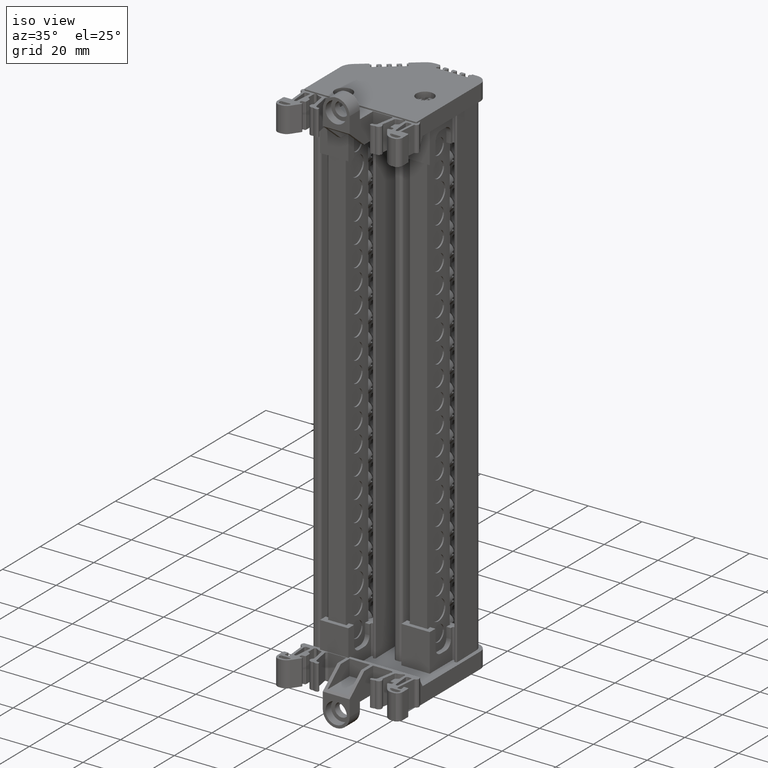
[diagram: clean part render]
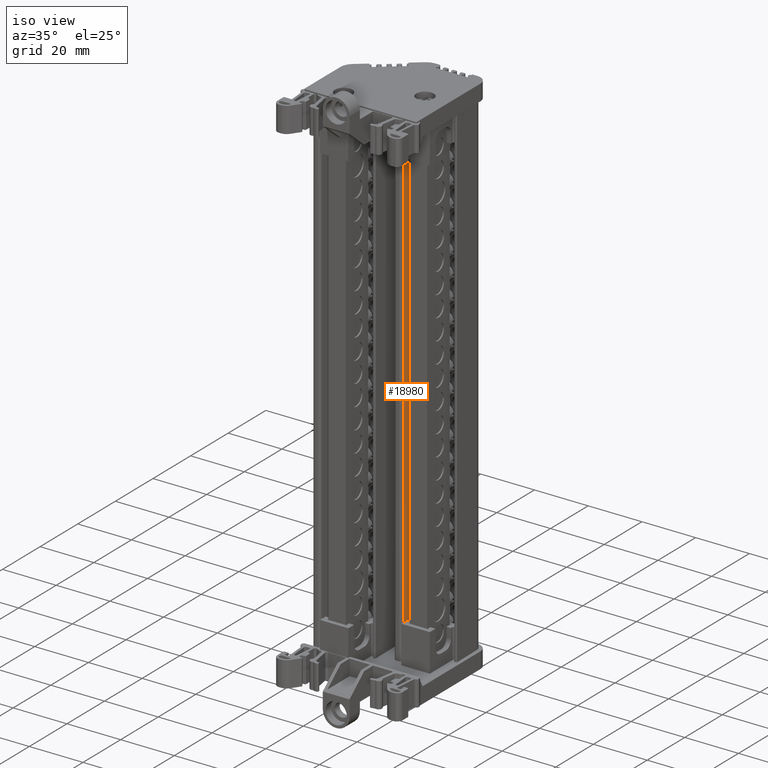
[diagram: same view with one face highlighted and labeled with its STEP entity id]
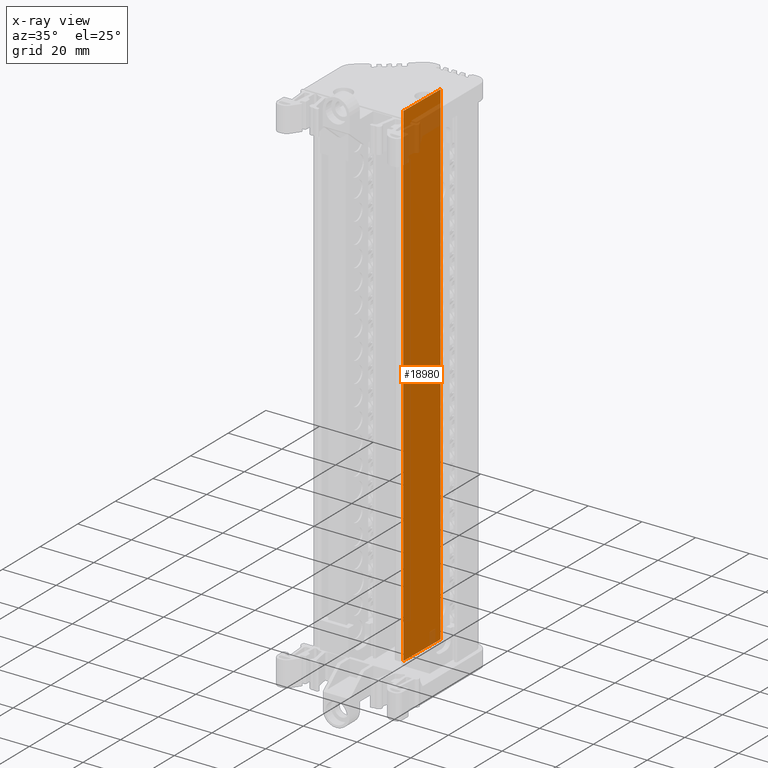
[diagram: x-ray of the same camera — body ghosted, the highlighted face saturated]
A machine part, iso view. The second image highlights one B-rep face of the part: STEP entity #18980.
The next image is the same camera in x-ray: the body ghosted, the highlighted face saturated — about 6% of this face is hidden behind the body in this view.
In plain terms, the highlighted planar face has unit normal (0.9998, -0.0175, -0).
Its self-contained STEP definition (entity closure, byte-faithful):
#9005 = AXIS2_PLACEMENT_3D ( 'NONE', #84161, #84156, #84141 ) ;
#11559 = VERTEX_POINT ( 'NONE', #64819 ) ;
#11605 = VERTEX_POINT ( 'NONE', #64793 ) ;
#12371 = VERTEX_POINT ( 'NONE', #62976 ) ;
#12435 = VERTEX_POINT ( 'NONE', #63067 ) ;
#15808 = EDGE_CURVE ( 'NONE', #11559, #11605, #66480, .T. ) ;
#15892 = EDGE_CURVE ( 'NONE', #12435, #11559, #69285, .T. ) ;
#15927 = EDGE_CURVE ( 'NONE', #11605, #12371, #69534, .T. ) ;
#18980 = ADVANCED_FACE ( 'NONE', ( #84116 ), #84123, .T. ) ;
#24762 = EDGE_CURVE ( 'NONE', #12371, #12435, #90557, .T. ) ;
#39083 = EDGE_LOOP ( 'NONE', ( #68216, #68342, #68235, #68239 ) ) ;
#62976 = CARTESIAN_POINT ( 'NONE',  ( -41.11319169614710500, 26.30652312685614500, -36.09779384098966700 ) ) ;
#63067 = CARTESIAN_POINT ( 'NONE',  ( -40.77726772239486800, 45.55159469031436000, -36.09779384098917600 ) ) ;
#64793 = CARTESIAN_POINT ( 'NONE',  ( -41.11319169606812100, 26.30652312685635900, 148.9721892898924700 ) ) ;
#64819 = CARTESIAN_POINT ( 'NONE',  ( -40.77726772231493900, 45.55159469031733000, 148.9721892898924700 ) ) ;
#64913 = VECTOR ( 'NONE', #90540, 1000.000000000000100 ) ;
#66480 = LINE ( 'NONE', #66490, #71389 ) ;
#66490 = CARTESIAN_POINT ( 'NONE',  ( -41.10933658443884300, 26.52738232409491200, 148.9721892898925000 ) ) ;
#66529 = DIRECTION ( 'NONE',  ( -0.01745240644061269900, -0.9998476951563330900, -0.0000000000000000000 ) ) ;
#68216 = ORIENTED_EDGE ( 'NONE', *, *, #15808, .T. ) ;
#68235 = ORIENTED_EDGE ( 'NONE', *, *, #24762, .T. ) ;
#68239 = ORIENTED_EDGE ( 'NONE', *, *, #15892, .T. ) ;
#68342 = ORIENTED_EDGE ( 'NONE', *, *, #15927, .T. ) ;
#69285 = LINE ( 'NONE', #69307, #71715 ) ;
#69306 = DIRECTION ( 'NONE',  ( 4.320873588066585300E-013, 1.604972357196100300E-014, 1.000000000000000000 ) ) ;
#69307 = CARTESIAN_POINT ( 'NONE',  ( -40.77726772234914400, 45.55159469031634200, 69.96599374775682600 ) ) ;
#69491 = DIRECTION ( 'NONE',  ( -4.316756871969292500E-013, 7.534927149393132500E-015, -1.000000000000000000 ) ) ;
#69520 = CARTESIAN_POINT ( 'NONE',  ( -41.11319169610148100, 26.30652312685644000, 69.96599374775739500 ) ) ;
#69534 = LINE ( 'NONE', #69520, #71833 ) ;
#71389 = VECTOR ( 'NONE', #66529, 1000.000000000000100 ) ;
#71715 = VECTOR ( 'NONE', #69306, 1000.000000000000000 ) ;
#71833 = VECTOR ( 'NONE', #69491, 1000.000000000000000 ) ;
#84116 = FACE_OUTER_BOUND ( 'NONE', #39083, .T. ) ;
#84123 = PLANE ( 'NONE',  #9005 ) ;
#84141 = DIRECTION ( 'NONE',  ( 0.01745240644061269900, 0.9998476951563330900, 0.0000000000000000000 ) ) ;
#84156 = DIRECTION ( 'NONE',  ( 0.9998476951563332000, -0.01745240644061270300, -4.317414435099875800E-013 ) ) ;
#84161 = CARTESIAN_POINT ( 'NONE',  ( -41.10933658447294900, 26.52738232409550900, 69.96599374775739500 ) ) ;
#90540 = DIRECTION ( 'NONE',  ( 0.01745240644061269900, 0.9998476951563330900, 0.0000000000000000000 ) ) ;
#90557 = LINE ( 'NONE', #90568, #64913 ) ;
#90568 = CARTESIAN_POINT ( 'NONE',  ( -41.10933658451872900, 26.52738232409630800, -36.09779384098978000 ) ) ;